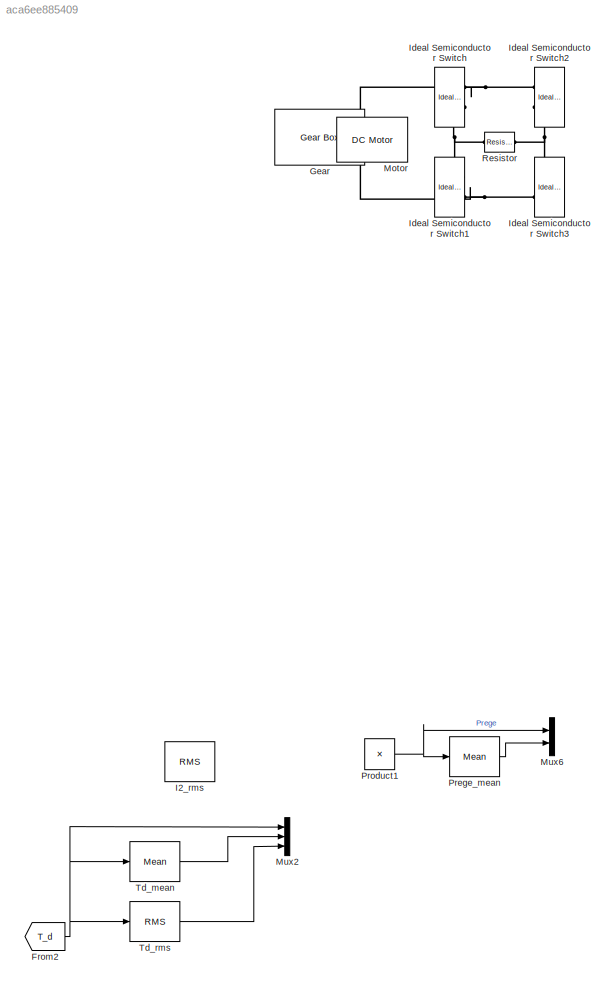
MODEL slx_aca6ee885409
KIND model
CONFIG AbsTol = auto
CONFIG EnableMultiTasking = off
CONFIG FixedStep = auto
CONFIG MaxStep = 1e-5
CONFIG MinStep = auto
CONFIG RelTol = 1e-4
CONFIG SampleTimeConstraint = Unconstrained
CONFIG Solver = ode45
CONFIG SolverName = ode45
CONFIG StartTime = 0.0
CONFIG StopTime = 0.3
BLOCK [From] From2
  GotoTag = T_d
BLOCK [Reference] Gear  REF=fl_lib/Mechanical/Mechanisms/Gear Box
  Ports = [0, 0, 0, 0, 0, 1, 1]
  SourceBlock = fl_lib/Mechanical/Mechanisms/Gear Box
  SourceProductBaseCode = SS
  SourceProductName = Simscape
  SourceType = Gear Box
BLOCK [Reference] I2_rms  REF=powerlib_meascontrol/Measurements/RMS
  Ports = [1, 1]
  SourceBlock = powerlib_meascontrol/Measurements/RMS
  SourceProductBaseCode = PS
  SourceProductName = Simscape Power Systems
  SourceType = RMS
BLOCK [Reference] Ideal Semiconductor Switch  REF=pe_lib/Semiconductors/Fundamental
Components/Ideal Semiconductor
Switch
  Ports = [0, 0, 0, 0, 0, 1, 2]
  SourceBlock = pe_lib/Semiconductors/Fundamental\nComponents/Ideal Semiconductor\nSwitch
  SourceProductBaseCode = PS
  SourceProductName = Simscape Power Systems
  SourceType = Ideal Semiconductor\nSwitch
BLOCK [Reference] Ideal Semiconductor Switch1  REF=pe_lib/Semiconductors/Fundamental
Components/Ideal Semiconductor
Switch
  Ports = [0, 0, 0, 0, 0, 1, 2]
  SourceBlock = pe_lib/Semiconductors/Fundamental\nComponents/Ideal Semiconductor\nSwitch
  SourceProductBaseCode = PS
  SourceProductName = Simscape Power Systems
  SourceType = Ideal Semiconductor\nSwitch
BLOCK [Reference] Ideal Semiconductor Switch2  REF=pe_lib/Semiconductors/Fundamental
Components/Ideal Semiconductor
Switch
  Ports = [0, 0, 0, 0, 0, 1, 2]
  SourceBlock = pe_lib/Semiconductors/Fundamental\nComponents/Ideal Semiconductor\nSwitch
  SourceProductBaseCode = PS
  SourceProductName = Simscape Power Systems
  SourceType = Ideal Semiconductor\nSwitch
BLOCK [Reference] Ideal Semiconductor Switch3  REF=pe_lib/Semiconductors/Fundamental
Components/Ideal Semiconductor
Switch
  Ports = [0, 0, 0, 0, 0, 1, 2]
  SourceBlock = pe_lib/Semiconductors/Fundamental\nComponents/Ideal Semiconductor\nSwitch
  SourceProductBaseCode = PS
  SourceProductName = Simscape Power Systems
  SourceType = Ideal Semiconductor\nSwitch
BLOCK [Reference] Motor  REF=elec_lib/Actuators & Drivers/Rotational Actuators/DC Motor
  Ports = [0, 0, 0, 0, 0, 2, 2]
  SourceBlock = elec_lib/Actuators & Drivers/Rotational Actuators/DC Motor
  SourceProductBaseCode = SN
  SourceProductName = Simscape Electronics
  SourceType = DC Motor
BLOCK [Mux] Mux2
  DisplayOption = bar
  Inputs = 3
  Ports = [3, 1]
BLOCK [Mux] Mux6
  DisplayOption = bar
  Inputs = 2
  Ports = [2, 1]
BLOCK [Reference] Prege_mean  REF=powerlib_meascontrol/Measurements/Mean
  Ports = [1, 1]
  SourceBlock = powerlib_meascontrol/Measurements/Mean
  SourceProductBaseCode = PS
  SourceProductName = Simscape Power Systems
  SourceType = Mean
BLOCK [Product] Product1
  InputSameDT = off
  OutDataTypeStr = Inherit: Inherit via internal rule
  Ports = [2, 1]
  RndMeth = Floor
  SaturateOnIntegerOverflow = off
BLOCK [Reference] Resistor  REF=fl_lib/Electrical/Electrical Elements/Resistor
  Ports = [0, 0, 0, 0, 0, 1, 1]
  SourceBlock = fl_lib/Electrical/Electrical Elements/Resistor
  SourceProductBaseCode = SS
  SourceProductName = Simscape
  SourceType = Resistor
BLOCK [Reference] Td_mean  REF=powerlib_meascontrol/Measurements/Mean
  Ports = [1, 1]
  SourceBlock = powerlib_meascontrol/Measurements/Mean
  SourceProductBaseCode = PS
  SourceProductName = Simscape Power Systems
  SourceType = Mean
BLOCK [Reference] Td_rms  REF=powerlib_meascontrol/Measurements/RMS
  Ports = [1, 1]
  SourceBlock = powerlib_meascontrol/Measurements/RMS
  SourceProductBaseCode = PS
  SourceProductName = Simscape Power Systems
  SourceType = RMS
NET From2:1 -> Mux2:1, Td_mean:1, Td_rms:1
LINE Prege_mean:1 -> Mux6:2
NET Product1:1 -> Mux6:1, Prege_mean:1
LINE Td_mean:1 -> Mux2:2
LINE Td_rms:1 -> Mux2:3
PNET net1: Ideal Semiconductor Switch1:RConn1 -- Ideal Semiconductor Switch:RConn2 -- Resistor:LConn1
PNET net2: Ideal Semiconductor Switch1:RConn2 -- Ideal Semiconductor Switch3:RConn2 -- Motor:RConn1
PNET net3: Ideal Semiconductor Switch2:RConn1 -- Ideal Semiconductor Switch:RConn1 -- Motor:LConn1
PNET net4: Ideal Semiconductor Switch2:RConn2 -- Ideal Semiconductor Switch3:RConn1 -- Resistor:RConn1
note: NET lines group one-source signal fan-out (src -> all destinations, sorted); 1:1 wires keep LINE; PNET lines group multi-terminal physical nets as a canonical sorted terminal list (undirected conserving connections); 2-terminal nets keep the pairwise PLINE form
